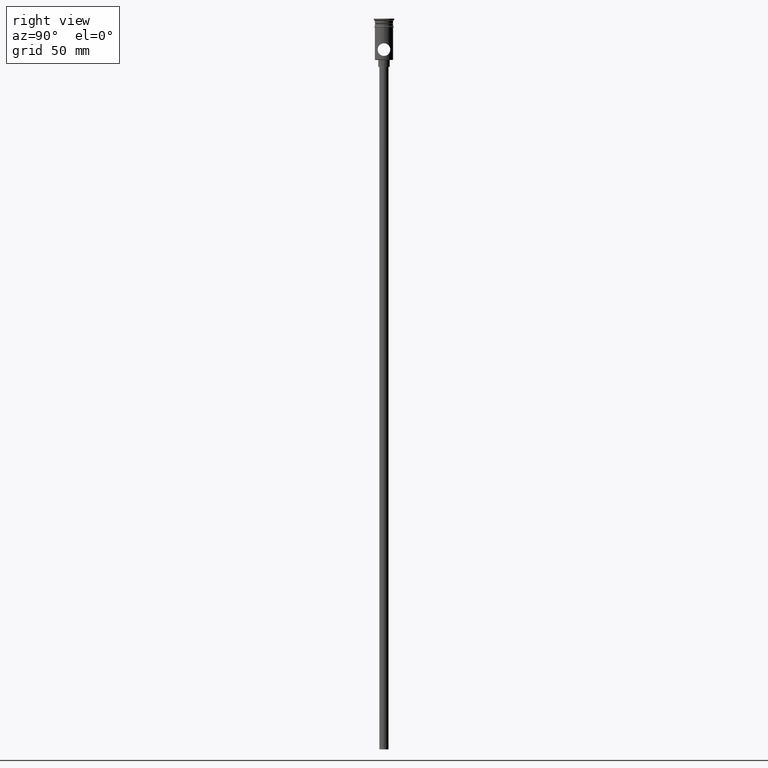
[diagram: clean part render]
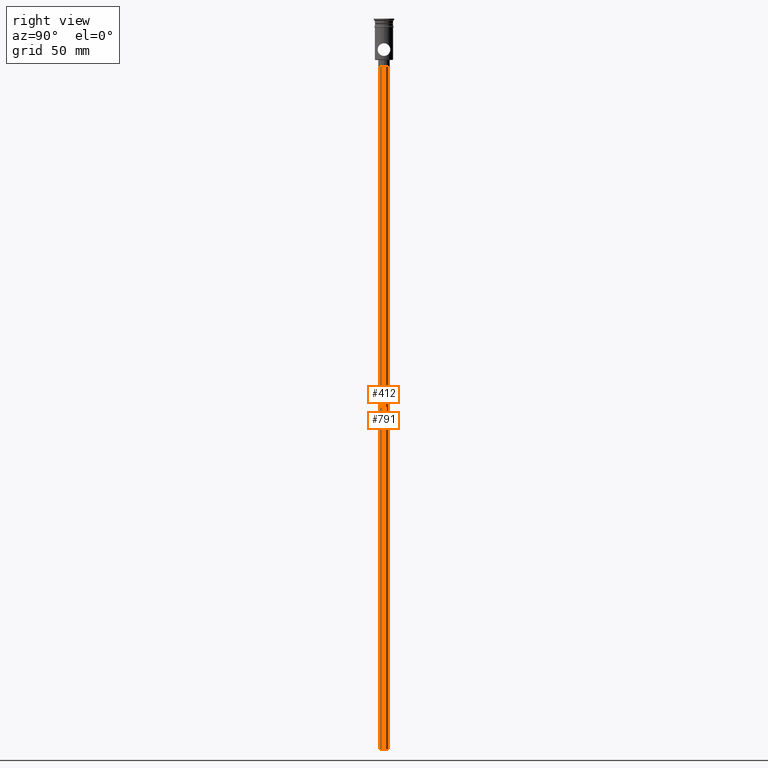
[diagram: same view with one multi-face feature highlighted, each face labeled with its STEP entity id]
A machine part, right view. The highlighted faces form ONE feature: a constant-radius fillet chain: 2 tangent blend faces with common blend radius 2 mm. The faces share edges in the B-rep.
Their STEP definitions:
[1] entity #791 (Cylinder):
#151 = DIRECTION ( 'NONE',  ( -1.000000000000000000, 0.000000000000000000, 0.000000000000000000 ) ) ;
#257 = DIRECTION ( 'NONE',  ( 0.000000000000000000, 0.000000000000000000, -1.000000000000000000 ) ) ;
#320 = VERTEX_POINT ( 'NONE', #776 ) ;
#343 = ORIENTED_EDGE ( 'NONE', *, *, #469, .F. ) ;
#405 = CARTESIAN_POINT ( 'NONE',  ( 2.000000000000000000, 0.000000000000000000, -318.0000000000000000 ) ) ;
#422 = ORIENTED_EDGE ( 'NONE', *, *, #1132, .T. ) ;
#436 = DIRECTION ( 'NONE',  ( -1.000000000000000000, 0.000000000000000000, 0.000000000000000000 ) ) ;
#469 = EDGE_CURVE ( 'NONE', #923, #1360, #848, .T. ) ;
#487 = EDGE_CURVE ( 'NONE', #320, #923, #1407, .T. ) ;
#562 = AXIS2_PLACEMENT_3D ( 'NONE', #1310, #857, #436 ) ;
#594 = CARTESIAN_POINT ( 'NONE',  ( 0.000000000000000000, 0.000000000000000000, -318.0000000000000000 ) ) ;
#710 = VECTOR ( 'NONE', #1372, 1000.000000000000000 ) ;
#776 = CARTESIAN_POINT ( 'NONE',  ( -2.000000000000000000, 2.449293598294706414E-16, -318.0000000000000000 ) ) ;
#791 = ADVANCED_FACE ( 'NONE', ( #931 ), #947, .T. ) ;
#848 = LINE ( 'NONE', #941, #710 ) ;
#857 = DIRECTION ( 'NONE',  ( 0.000000000000000000, 0.000000000000000000, -1.000000000000000000 ) ) ;
#916 = ORIENTED_EDGE ( 'NONE', *, *, #1354, .T. ) ;
#923 = VERTEX_POINT ( 'NONE', #405 ) ;
#931 = FACE_OUTER_BOUND ( 'NONE', #998, .T. ) ;
#935 = CARTESIAN_POINT ( 'NONE',  ( -2.000000000000000000, 2.449293598294706414E-16, -20.99999999999999645 ) ) ;
#941 = CARTESIAN_POINT ( 'NONE',  ( 2.000000000000000000, 0.000000000000000000, -318.0000000000000000 ) ) ;
#942 = AXIS2_PLACEMENT_3D ( 'NONE', #1261, #257, #151 ) ;
#947 = CYLINDRICAL_SURFACE ( 'NONE', #1164, 2.000000000000000000 ) ;
#955 = DIRECTION ( 'NONE',  ( 1.000000000000000000, 0.000000000000000000, 0.000000000000000000 ) ) ;
#998 = EDGE_LOOP ( 'NONE', ( #1405, #916, #422, #343 ) ) ;
#1057 = DIRECTION ( 'NONE',  ( -0.000000000000000000, -0.000000000000000000, 1.000000000000000000 ) ) ;
#1078 = CARTESIAN_POINT ( 'NONE',  ( -2.000000000000000000, 2.449293598294706414E-16, -318.0000000000000000 ) ) ;
#1132 = EDGE_CURVE ( 'NONE', #1426, #1360, #1390, .T. ) ;
#1164 = AXIS2_PLACEMENT_3D ( 'NONE', #594, #1057, #955 ) ;
#1184 = CARTESIAN_POINT ( 'NONE',  ( 2.000000000000000000, 0.000000000000000000, -20.99999999999999645 ) ) ;
#1204 = DIRECTION ( 'NONE',  ( -0.000000000000000000, -0.000000000000000000, 1.000000000000000000 ) ) ;
#1252 = VECTOR ( 'NONE', #1204, 1000.000000000000000 ) ;
#1261 = CARTESIAN_POINT ( 'NONE',  ( 0.000000000000000000, 0.000000000000000000, -318.0000000000000000 ) ) ;
#1310 = CARTESIAN_POINT ( 'NONE',  ( 0.000000000000000000, 0.000000000000000000, -20.99999999999999645 ) ) ;
#1354 = EDGE_CURVE ( 'NONE', #320, #1426, #1366, .T. ) ;
#1360 = VERTEX_POINT ( 'NONE', #1184 ) ;
#1366 = LINE ( 'NONE', #1078, #1252 ) ;
#1372 = DIRECTION ( 'NONE',  ( -0.000000000000000000, -0.000000000000000000, 1.000000000000000000 ) ) ;
#1390 = CIRCLE ( 'NONE', #562, 2.000000000000000000 ) ;
#1405 = ORIENTED_EDGE ( 'NONE', *, *, #487, .F. ) ;
#1407 = CIRCLE ( 'NONE', #942, 2.000000000000000000 ) ;
#1426 = VERTEX_POINT ( 'NONE', #935 ) ;
[2] entity #412 (Cylinder):
#11 = CARTESIAN_POINT ( 'NONE',  ( 0.000000000000000000, 0.000000000000000000, -20.99999999999999645 ) ) ;
#17 = CIRCLE ( 'NONE', #1298, 2.000000000000000000 ) ;
#75 = EDGE_CURVE ( 'NONE', #1360, #1426, #236, .T. ) ;
#104 = ORIENTED_EDGE ( 'NONE', *, *, #1354, .F. ) ;
#113 = FACE_OUTER_BOUND ( 'NONE', #181, .T. ) ;
#181 = EDGE_LOOP ( 'NONE', ( #104, #323, #219, #1295 ) ) ;
#216 = DIRECTION ( 'NONE',  ( -1.000000000000000000, 0.000000000000000000, 0.000000000000000000 ) ) ;
#219 = ORIENTED_EDGE ( 'NONE', *, *, #469, .T. ) ;
#236 = CIRCLE ( 'NONE', #1436, 2.000000000000000000 ) ;
#320 = VERTEX_POINT ( 'NONE', #776 ) ;
#323 = ORIENTED_EDGE ( 'NONE', *, *, #1156, .F. ) ;
#405 = CARTESIAN_POINT ( 'NONE',  ( 2.000000000000000000, 0.000000000000000000, -318.0000000000000000 ) ) ;
#412 = ADVANCED_FACE ( 'NONE', ( #113 ), #454, .T. ) ;
#454 = CYLINDRICAL_SURFACE ( 'NONE', #879, 2.000000000000000000 ) ;
#469 = EDGE_CURVE ( 'NONE', #923, #1360, #848, .T. ) ;
#496 = DIRECTION ( 'NONE',  ( 1.000000000000000000, 0.000000000000000000, 0.000000000000000000 ) ) ;
#551 = CARTESIAN_POINT ( 'NONE',  ( 0.000000000000000000, 0.000000000000000000, -318.0000000000000000 ) ) ;
#615 = DIRECTION ( 'NONE',  ( -0.000000000000000000, -0.000000000000000000, 1.000000000000000000 ) ) ;
#710 = VECTOR ( 'NONE', #1372, 1000.000000000000000 ) ;
#776 = CARTESIAN_POINT ( 'NONE',  ( -2.000000000000000000, 2.449293598294706414E-16, -318.0000000000000000 ) ) ;
#777 = CARTESIAN_POINT ( 'NONE',  ( 0.000000000000000000, 0.000000000000000000, -318.0000000000000000 ) ) ;
#800 = DIRECTION ( 'NONE',  ( 0.000000000000000000, 0.000000000000000000, -1.000000000000000000 ) ) ;
#848 = LINE ( 'NONE', #941, #710 ) ;
#879 = AXIS2_PLACEMENT_3D ( 'NONE', #551, #615, #496 ) ;
#923 = VERTEX_POINT ( 'NONE', #405 ) ;
#935 = CARTESIAN_POINT ( 'NONE',  ( -2.000000000000000000, 2.449293598294706414E-16, -20.99999999999999645 ) ) ;
#941 = CARTESIAN_POINT ( 'NONE',  ( 2.000000000000000000, 0.000000000000000000, -318.0000000000000000 ) ) ;
#985 = DIRECTION ( 'NONE',  ( 0.000000000000000000, 0.000000000000000000, -1.000000000000000000 ) ) ;
#1078 = CARTESIAN_POINT ( 'NONE',  ( -2.000000000000000000, 2.449293598294706414E-16, -318.0000000000000000 ) ) ;
#1139 = DIRECTION ( 'NONE',  ( -1.000000000000000000, 0.000000000000000000, 0.000000000000000000 ) ) ;
#1156 = EDGE_CURVE ( 'NONE', #923, #320, #17, .T. ) ;
#1184 = CARTESIAN_POINT ( 'NONE',  ( 2.000000000000000000, 0.000000000000000000, -20.99999999999999645 ) ) ;
#1204 = DIRECTION ( 'NONE',  ( -0.000000000000000000, -0.000000000000000000, 1.000000000000000000 ) ) ;
#1252 = VECTOR ( 'NONE', #1204, 1000.000000000000000 ) ;
#1295 = ORIENTED_EDGE ( 'NONE', *, *, #75, .T. ) ;
#1298 = AXIS2_PLACEMENT_3D ( 'NONE', #777, #985, #216 ) ;
#1354 = EDGE_CURVE ( 'NONE', #320, #1426, #1366, .T. ) ;
#1360 = VERTEX_POINT ( 'NONE', #1184 ) ;
#1366 = LINE ( 'NONE', #1078, #1252 ) ;
#1372 = DIRECTION ( 'NONE',  ( -0.000000000000000000, -0.000000000000000000, 1.000000000000000000 ) ) ;
#1426 = VERTEX_POINT ( 'NONE', #935 ) ;
#1436 = AXIS2_PLACEMENT_3D ( 'NONE', #11, #800, #1139 ) ;